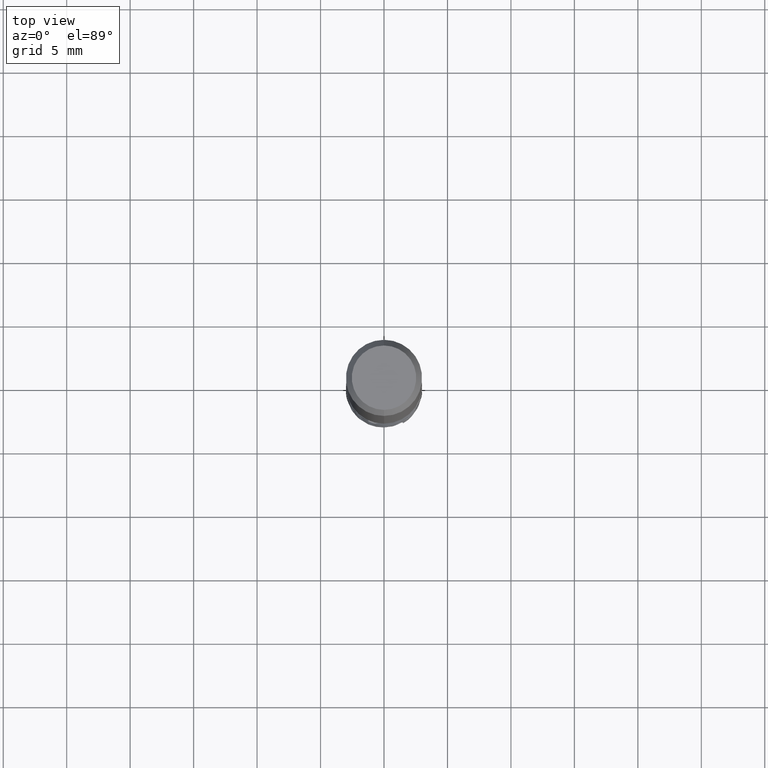
[diagram: clean part render]
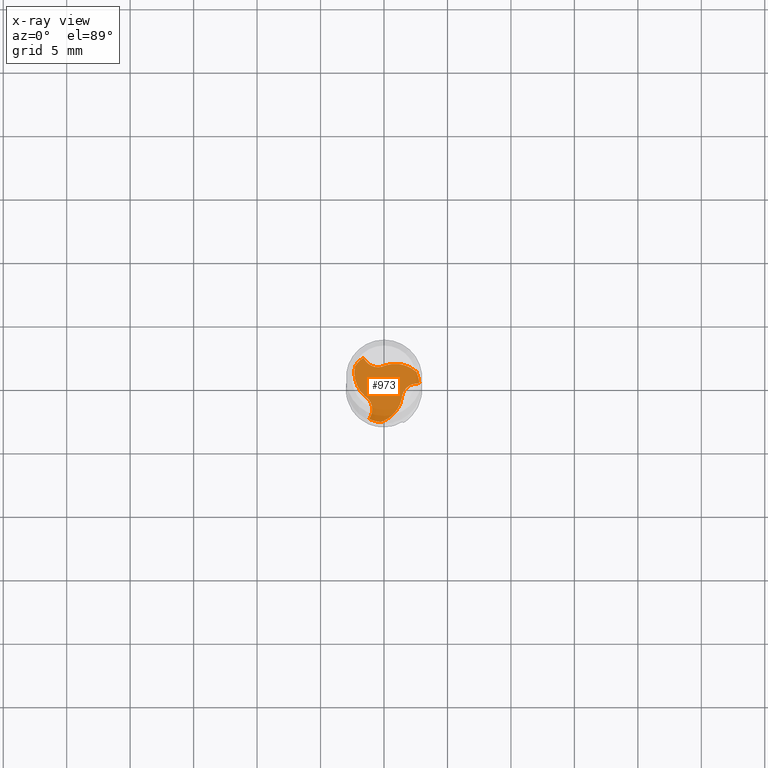
[diagram: x-ray — body ghosted, one internal face saturated and labeled with its STEP entity id]
A machine part, top view, then the same camera in x-ray: the body is ghosted and one INTERNAL B-rep face — a face not visible from any outside direction — is saturated and labeled: STEP entity #973.
In plain terms, the highlighted planar face has unit normal (0, 0, -1).
Its self-contained STEP definition (entity closure, byte-faithful):
#535=VERTEX_POINT('',#1408);
#537=EDGE_CURVE('',#1295,#591,#1410,.T.);
#563=VERTEX_POINT('',#1438);
#565=EDGE_CURVE('',#563,#693,#1440,.T.);
#591=VERTEX_POINT('',#1467);
#607=VERTEX_POINT('',#1484);
#633=EDGE_CURVE('',#693,#637,#1511,.T.);
#637=VERTEX_POINT('',#1516);
#693=VERTEX_POINT('',#1579);
#711=EDGE_CURVE('',#1221,#981,#1599,.T.);
#739=EDGE_CURVE('',#607,#1299,#1632,.T.);
#953=VERTEX_POINT('',#1867);
#973=ADVANCED_FACE('',(#1887),#1888,.T.);
#979=EDGE_CURVE('',#953,#1295,#1894,.T.);
#981=VERTEX_POINT('',#1896);
#985=EDGE_CURVE('',#637,#953,#1900,.T.);
#1031=EDGE_CURVE('',#591,#1221,#1951,.T.);
#1065=EDGE_CURVE('',#535,#1203,#1986,.T.);
#1069=EDGE_CURVE('',#981,#535,#1990,.T.);
#1203=VERTEX_POINT('',#2139);
#1207=EDGE_CURVE('',#1299,#563,#2143,.T.);
#1221=VERTEX_POINT('',#2157);
#1273=EDGE_CURVE('',#1203,#607,#2214,.T.);
#1295=VERTEX_POINT('',#2241);
#1299=VERTEX_POINT('',#2245);
#1408=CARTESIAN_POINT('',(2.78669408379764,0.272132478449781,-41.0));
#1410=LINE('',#3348,#3349);
#1438=CARTESIAN_POINT('',(-1.15767340236643,-2.54941410836948,-40.9999999999998));
#1440=LINE('',#3609,#3610);
#1467=CARTESIAN_POINT('',(-1.46032675954626,2.04145677283422,-41.0000000000009));
#1484=CARTESIAN_POINT('',(1.39706691822854,-0.939986017513007,-41.0000000000004));
#1511=CIRCLE('',#3980,1.22);
#1516=CARTESIAN_POINT('',(-1.51258522948226,-0.739902433215384,-40.9999999999998));
#1579=CARTESIAN_POINT('',(-1.03779004622911,-2.28540845801039,-40.9999999999998));
#1599=CIRCLE('',#4510,2.4804);
#1632=CIRCLE('',#4932,2.4804);
#1867=CARTESIAN_POINT('',(-2.28039986367423,1.62465272112368,-40.9999999999998));
#1887=FACE_OUTER_BOUND('',#6623,.T.);
#1888=PLANE('',#6624);
#1894=CIRCLE('',#6633,2.79995);
#1896=CARTESIAN_POINT('',(2.54719046065762,1.16255785216687,-41.0));
#1900=CIRCLE('',#6640,2.4804);
#1951=CIRCLE('',#7140,1.22);
#1986=LINE('',#7414,#7415);
#1990=CIRCLE('',#7420,2.79995);
#2139=CARTESIAN_POINT('',(2.49811680577635,0.243951685176199,-41.0000000000004));
#2143=CIRCLE('',#8535,2.79995);
#2157=CARTESIAN_POINT('',(0.115518311254689,1.67988845072844,-41.0000000000009));
#2214=CIRCLE('',#9150,1.22);
#2241=CARTESIAN_POINT('',(-1.62902068143119,2.27728162991964,-41.0));
#2245=CARTESIAN_POINT('',(-0.266790596982783,-2.78721057329036,-41.0));
#3348=CARTESIAN_POINT('',(-1.46032675954626,2.04145677283422,-41.0000000000009));
#3349=VECTOR('',#9968,0.999999999999999);
#3609=CARTESIAN_POINT('',(-1.03779004622911,-2.28540845801039,-40.9999999999998));
#3610=VECTOR('',#9992,0.999999999999999);
#3980=AXIS2_PLACEMENT_3D('',#10053,#10054,#10055);
#4510=AXIS2_PLACEMENT_3D('',#10175,#10176,#10177);
#4932=AXIS2_PLACEMENT_3D('',#10219,#10220,#10221);
#6623=EDGE_LOOP('',(#10467,#10468,#10469,#10470,#10471,#10472,#10473,#10474,#10475,#10476,#10477,#10478));
#6624=AXIS2_PLACEMENT_3D('',#10479,#10480,#10481);
#6633=AXIS2_PLACEMENT_3D('',#10483,#10484,#10485);
#6640=AXIS2_PLACEMENT_3D('',#10486,#10487,#10488);
#7140=AXIS2_PLACEMENT_3D('',#10538,#10539,#10540);
#7414=CARTESIAN_POINT('',(2.49811680577635,0.243951685176199,-41.0000000000004));
#7415=VECTOR('',#10559,0.999999999999999);
#7420=AXIS2_PLACEMENT_3D('',#10560,#10561,#10562);
#8535=AXIS2_PLACEMENT_3D('',#10737,#10738,#10739);
#9150=AXIS2_PLACEMENT_3D('',#10798,#10799,#10800);
#9968=DIRECTION('',(0.581803489859173,-0.813329391567578,-6.10622663543836E-016));
#9992=DIRECTION('',(0.413462169812477,0.910521298012275,1.60982338570648E-015));
#10053=CARTESIAN_POINT('',(-2.14862602993171,-1.78098461087838,-40.9999999999998));
#10054=DIRECTION('',(-2.55351295663786E-015,-5.55111512312578E-016,1.0));
#10055=DIRECTION('',(0.521344918303686,0.853346047133824,1.80496321851619E-015));
#10175=CARTESIAN_POINT('',(0.884701486979424,-0.678233980822142,-41.0000000000009));
#10176=DIRECTION('',(5.88418203051333E-015,4.94049245958195E-015,-1.0));
#10177=DIRECTION('',(-0.310104489487479,0.950702480063931,2.87222716943797E-015));
#10219=CARTESIAN_POINT('',(-1.02971860059055,-0.427056972078915,-41.0000000000004));
#10220=DIRECTION('',(-6.10622663543836E-016,-3.52495810318487E-015,-1.0));
#10221=DIRECTION('',(0.978384743919971,-0.206792874308212,1.31512319670557E-016));
#10467=ORIENTED_EDGE('',*,*,#537,.T.);
#10468=ORIENTED_EDGE('',*,*,#1031,.T.);
#10469=ORIENTED_EDGE('',*,*,#711,.T.);
#10470=ORIENTED_EDGE('',*,*,#1069,.T.);
#10471=ORIENTED_EDGE('',*,*,#1065,.T.);
#10472=ORIENTED_EDGE('',*,*,#1273,.T.);
#10473=ORIENTED_EDGE('',*,*,#739,.T.);
#10474=ORIENTED_EDGE('',*,*,#1207,.T.);
#10475=ORIENTED_EDGE('',*,*,#565,.T.);
#10476=ORIENTED_EDGE('',*,*,#633,.T.);
#10477=ORIENTED_EDGE('',*,*,#985,.T.);
#10478=ORIENTED_EDGE('',*,*,#979,.T.);
#10479=CARTESIAN_POINT('',(0.0,1.399975,-41.0));
#10480=DIRECTION('',(0.0,0.0,-1.0));
#10481=DIRECTION('',(0.0,1.0,0.0));
#10483=CARTESIAN_POINT('',(0.0,0.0,-41.0));
#10484=DIRECTION('',(0.0,0.0,-1.0));
#10485=DIRECTION('',(0.0,1.0,0.0));
#10486=CARTESIAN_POINT('',(0.145017113612099,1.10529095290111,-40.9999999999998));
#10487=DIRECTION('',(2.55351295663786E-015,5.55111512312578E-016,-1.0));
#10488=DIRECTION('',(-0.668280254432493,-0.743909605755728,-2.11941507463353E-015));
#10538=CARTESIAN_POINT('',(-0.46806490180397,2.75125703059254,-41.0000000000009));
#10539=DIRECTION('',(-5.88418203051333E-015,-4.94049245958195E-015,1.0));
#10540=DIRECTION('',(0.478346895885081,-0.878170966951827,-1.52391683133046E-015));
#10559=DIRECTION('',(-0.995265659671651,-0.0971919064446883,1.22124532708767E-015));
#10560=CARTESIAN_POINT('',(0.0,0.0,-41.0));
#10561=DIRECTION('',(0.0,0.0,-1.0));
#10562=DIRECTION('',(0.0,1.0,0.0));
#10737=CARTESIAN_POINT('',(0.0,0.0,-41.0));
#10738=DIRECTION('',(0.0,0.0,-1.0));
#10739=DIRECTION('',(0.0,1.0,0.0));
#10798=CARTESIAN_POINT('',(2.61669093173665,-0.970272419714135,-41.0000000000004));
#10799=DIRECTION('',(6.10622663543836E-016,3.52495810318487E-015,1.0));
#10800=DIRECTION('',(-0.999691814188768,0.0248249198180113,5.22927676029501E-016));